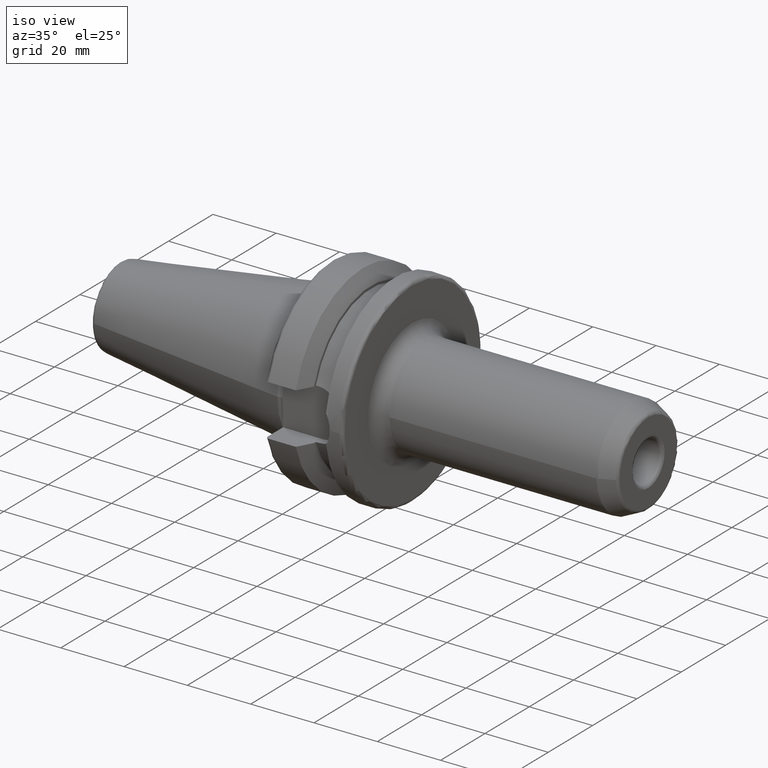
[diagram: clean part render]
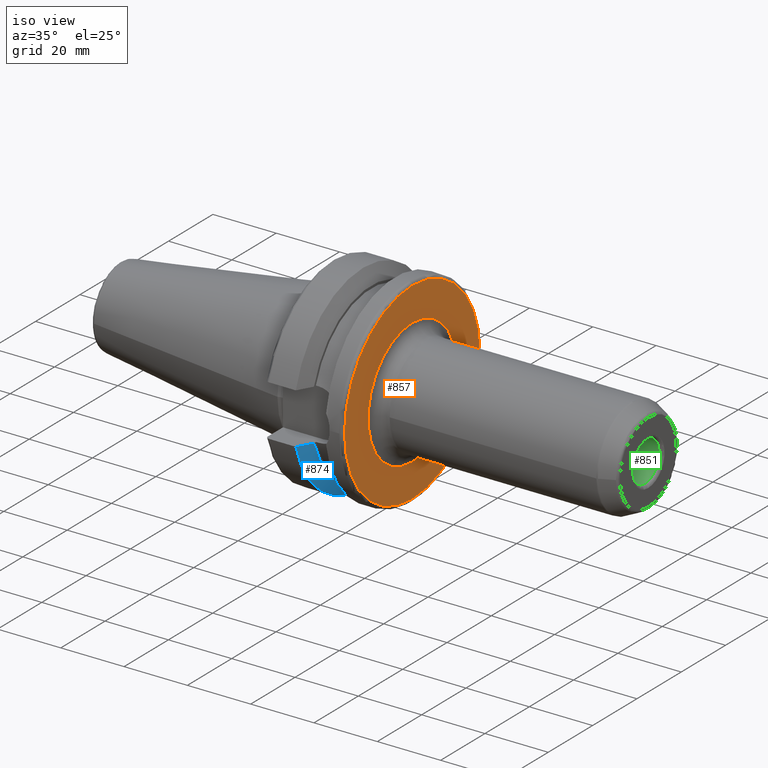
[diagram: same view with three faces highlighted in distinct colors, each labeled with its STEP entity id]
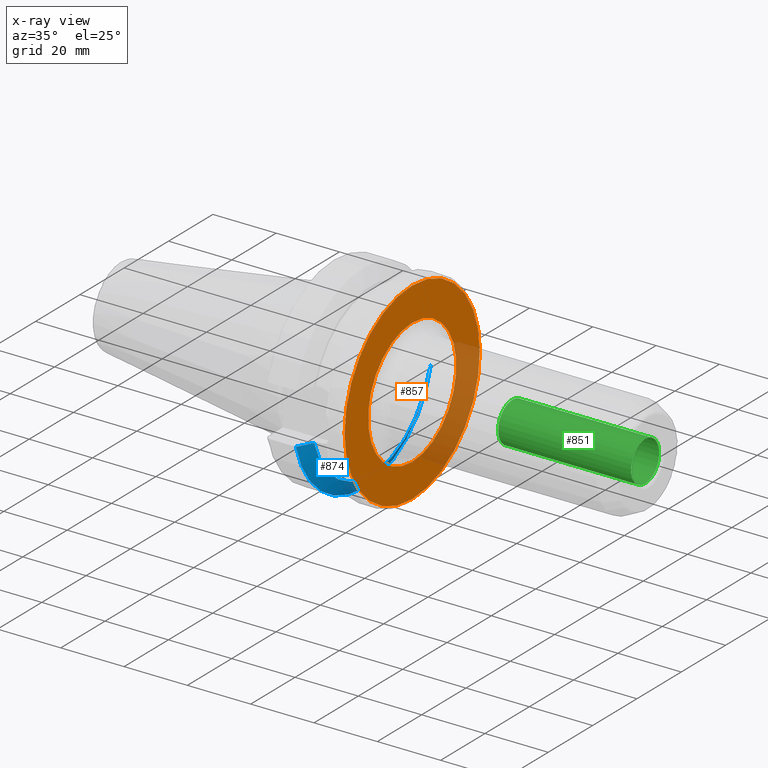
[diagram: x-ray of the same camera — body ghosted, the three highlighted faces saturated]
A machine part, iso view with three faces highlighted in distinct colors.
The next image is the same camera in x-ray (body ghosted, the three faces saturated) — at least one of them is partly hidden behind the body in this view.
Their STEP definitions:

[orange] entity #857 — the highlighted planar face has unit normal (1, 0, 0).
#157=FACE_BOUND('',#244,.T.);
#164=PLANE('',#950);
#188=FACE_OUTER_BOUND('',#243,.T.);
#243=EDGE_LOOP('',(#620));
#244=EDGE_LOOP('',(#621));
#310=CIRCLE('',#949,19.875);
#311=CIRCLE('',#951,30.5);
#374=VERTEX_POINT('',#1445);
#375=VERTEX_POINT('',#1449);
#468=EDGE_CURVE('',#374,#374,#310,.T.);
#469=EDGE_CURVE('',#375,#375,#311,.T.);
#620=ORIENTED_EDGE('',*,*,#469,.T.);
#621=ORIENTED_EDGE('',*,*,#468,.F.);
#857=ADVANCED_FACE('',(#188,#157),#164,.T.);
#949=AXIS2_PLACEMENT_3D('',#1447,#1094,#1095);
#950=AXIS2_PLACEMENT_3D('',#1448,#1096,#1097);
#951=AXIS2_PLACEMENT_3D('',#1450,#1098,#1099);
#1094=DIRECTION('center_axis',(1.,0.,0.));
#1095=DIRECTION('ref_axis',(0.,-1.,-1.22464679914735E-16));
#1096=DIRECTION('center_axis',(1.,0.,0.));
#1097=DIRECTION('ref_axis',(0.,0.,-1.));
#1098=DIRECTION('center_axis',(1.,0.,0.));
#1099=DIRECTION('ref_axis',(0.,0.,-1.));
#1445=CARTESIAN_POINT('',(27.,-2.43398551330536E-15,-19.875));
#1447=CARTESIAN_POINT('Origin',(27.,0.,0.));
#1448=CARTESIAN_POINT('Origin',(27.,0.,0.));
#1449=CARTESIAN_POINT('',(27.,-3.73517273739943E-15,30.5));
#1450=CARTESIAN_POINT('Origin',(27.,0.,0.));

[blue] entity #874 — the highlighted conical surface has half-angle 60.125 deg.
#16=(
BOUNDED_CURVE()
B_SPLINE_CURVE(2,(#1574,#1575,#1576),.UNSPECIFIED.,.F.,.F.)
B_SPLINE_CURVE_WITH_KNOTS((3,3),(0.,0.52358279083281),.UNSPECIFIED.)
CURVE()
GEOMETRIC_REPRESENTATION_ITEM()
RATIONAL_B_SPLINE_CURVE((1.,1.00307360097546,1.))
REPRESENTATION_ITEM('')
);
#17=(
BOUNDED_CURVE()
B_SPLINE_CURVE(2,(#1631,#1632,#1633),.UNSPECIFIED.,.F.,.F.)
B_SPLINE_CURVE_WITH_KNOTS((3,3),(0.,0.52358279083281),.UNSPECIFIED.)
CURVE()
GEOMETRIC_REPRESENTATION_ITEM()
RATIONAL_B_SPLINE_CURVE((1.,1.00307360097546,1.))
REPRESENTATION_ITEM('')
);
#22=CONICAL_SURFACE('',#983,29.2970358274569,1.0493792127616);
#205=FACE_OUTER_BOUND('',#263,.T.);
#263=EDGE_LOOP('',(#707,#708,#709,#710));
#326=CIRCLE('',#982,27.0940716549138);
#327=CIRCLE('',#984,31.5000000000001);
#403=VERTEX_POINT('',#1571);
#404=VERTEX_POINT('',#1573);
#413=VERTEX_POINT('',#1625);
#414=VERTEX_POINT('',#1629);
#504=EDGE_CURVE('',#404,#403,#16,.T.);
#520=EDGE_CURVE('',#404,#413,#326,.T.);
#522=EDGE_CURVE('',#403,#414,#327,.T.);
#523=EDGE_CURVE('',#414,#413,#17,.T.);
#707=ORIENTED_EDGE('',*,*,#504,.T.);
#708=ORIENTED_EDGE('',*,*,#522,.T.);
#709=ORIENTED_EDGE('',*,*,#523,.T.);
#710=ORIENTED_EDGE('',*,*,#520,.F.);
#874=ADVANCED_FACE('',(#205),#22,.T.);
#982=AXIS2_PLACEMENT_3D('',#1626,#1183,#1184);
#983=AXIS2_PLACEMENT_3D('',#1628,#1186,#1187);
#984=AXIS2_PLACEMENT_3D('',#1630,#1188,#1189);
#1183=DIRECTION('center_axis',(1.,0.,0.));
#1184=DIRECTION('ref_axis',(0.,0.,-1.));
#1186=DIRECTION('center_axis',(-1.,0.,0.));
#1187=DIRECTION('ref_axis',(0.,1.,0.));
#1188=DIRECTION('center_axis',(1.,0.,0.));
#1189=DIRECTION('ref_axis',(0.,0.,-1.));
#1571=CARTESIAN_POINT('',(11.5690363073382,-30.4540227227866,-8.05));
#1573=CARTESIAN_POINT('',(14.1,-25.8705666509569,-8.05));
#1574=CARTESIAN_POINT('Ctrl Pts',(14.1,-25.8705666509569,-8.05));
#1575=CARTESIAN_POINT('Ctrl Pts',(12.9374976962938,-27.989970265181,-8.05));
#1576=CARTESIAN_POINT('Ctrl Pts',(11.5690363073382,-30.4540227227866,-8.05));
#1625=CARTESIAN_POINT('',(14.1,25.8705666509569,-8.05));
#1626=CARTESIAN_POINT('Origin',(14.1,0.,0.));
#1628=CARTESIAN_POINT('Origin',(12.8345181536691,0.,0.));
#1629=CARTESIAN_POINT('',(11.5690363073382,30.4540227227866,-8.05));
#1630=CARTESIAN_POINT('Origin',(11.5690363073382,0.,0.));
#1631=CARTESIAN_POINT('Ctrl Pts',(11.5690363073382,30.4540227227866,-8.05));
#1632=CARTESIAN_POINT('Ctrl Pts',(12.9374976962938,27.989970265181,-8.05));
#1633=CARTESIAN_POINT('Ctrl Pts',(14.1,25.8705666509569,-8.05));

[green] entity #851 — the highlighted cylindrical surface (bore or boss wall) has radius 6.35 mm, axis along (1, 0, 0).
#28=B_SPLINE_CURVE_WITH_KNOTS('',3,(#1334,#1335,#1336,#1337,#1338,#1339,
#1340,#1341,#1342,#1343),.UNSPECIFIED.,.F.,.F.,(4,2,2,2,4),(0.,0.193368535030048,
0.386737070060095,0.573629086500711,0.760521102941327),.UNSPECIFIED.);
#29=B_SPLINE_CURVE_WITH_KNOTS('',3,(#1344,#1345,#1346,#1347,#1348,#1349,
#1350,#1351,#1352,#1353,#1354,#1355,#1356,#1357,#1358,#1359,#1360,#1361,
#1362,#1363,#1364,#1365,#1366,#1367,#1368,#1369,#1370,#1371,#1372,#1373),
 .UNSPECIFIED.,.F.,.F.,(4,2,2,2,2,2,2,2,2,2,2,2,2,2,4),(0.760521102941327,
0.961549827452933,1.16257855196454,1.36686694826909,1.46901114642136,1.57115534457363,
1.67329954272591,1.77544374087818,1.97973213718273,2.18076086169434,2.38178958620594,
2.56868160264656,2.75557361908717,2.94894215411722,3.14231068914727),
 .UNSPECIFIED.);
#48=LINE('',#1330,#93);
#93=VECTOR('',#1057,6.35000000000001);
#138=CYLINDRICAL_SURFACE('',#931,6.35000000000001);
#155=FACE_BOUND('',#236,.T.);
#182=FACE_OUTER_BOUND('',#235,.T.);
#235=EDGE_LOOP('',(#582,#583,#584,#585,#586));
#236=EDGE_LOOP('',(#587,#588));
#293=CIRCLE('',#925,6.35000000000001);
#294=CIRCLE('',#926,6.35000000000001);
#298=CIRCLE('',#932,6.35000000000001);
#356=VERTEX_POINT('',#1318);
#357=VERTEX_POINT('',#1319);
#360=VERTEX_POINT('',#1329);
#361=VERTEX_POINT('',#1332);
#362=VERTEX_POINT('',#1333);
#443=EDGE_CURVE('',#356,#357,#293,.T.);
#444=EDGE_CURVE('',#357,#356,#294,.T.);
#448=EDGE_CURVE('',#357,#360,#48,.T.);
#449=EDGE_CURVE('',#360,#360,#298,.T.);
#450=EDGE_CURVE('',#361,#362,#28,.T.);
#451=EDGE_CURVE('',#362,#361,#29,.T.);
#582=ORIENTED_EDGE('',*,*,#443,.F.);
#583=ORIENTED_EDGE('',*,*,#444,.F.);
#584=ORIENTED_EDGE('',*,*,#448,.T.);
#585=ORIENTED_EDGE('',*,*,#449,.F.);
#586=ORIENTED_EDGE('',*,*,#448,.F.);
#587=ORIENTED_EDGE('',*,*,#450,.T.);
#588=ORIENTED_EDGE('',*,*,#451,.T.);
#851=ADVANCED_FACE('',(#182,#155),#138,.F.);
#925=AXIS2_PLACEMENT_3D('',#1320,#1043,#1044);
#926=AXIS2_PLACEMENT_3D('',#1321,#1045,#1046);
#931=AXIS2_PLACEMENT_3D('',#1328,#1055,#1056);
#932=AXIS2_PLACEMENT_3D('',#1331,#1058,#1059);
#1043=DIRECTION('center_axis',(-1.,0.,0.));
#1044=DIRECTION('ref_axis',(0.,-1.,1.83697019872103E-16));
#1045=DIRECTION('center_axis',(-1.,0.,0.));
#1046=DIRECTION('ref_axis',(0.,-1.,1.83697019872103E-16));
#1055=DIRECTION('center_axis',(1.,0.,0.));
#1056=DIRECTION('ref_axis',(0.,1.,0.));
#1057=DIRECTION('',(-1.,0.,0.));
#1058=DIRECTION('center_axis',(1.,0.,0.));
#1059=DIRECTION('ref_axis',(0.,0.,-1.));
#1318=CARTESIAN_POINT('',(100.6,-7.77650717458571E-16,6.35000000000001));
#1319=CARTESIAN_POINT('',(100.6,-6.35000000000001,-7.77650717458571E-16));
#1320=CARTESIAN_POINT('Origin',(100.6,0.,0.));
#1321=CARTESIAN_POINT('Origin',(100.6,0.,0.));
#1328=CARTESIAN_POINT('Origin',(80.1,0.,0.));
#1329=CARTESIAN_POINT('',(58.6,-6.35000000000001,-7.77650717458571E-16));
#1330=CARTESIAN_POINT('',(80.1,-6.35000000000001,-7.77650717458571E-16));
#1331=CARTESIAN_POINT('Origin',(58.6,0.,0.));
#1332=CARTESIAN_POINT('',(81.6,4.70531095571803,4.2641));
#1333=CARTESIAN_POINT('',(86.4641,6.32158998986807,-0.600000000000002));
#1334=CARTESIAN_POINT('Ctrl Pts',(81.6,4.70531095571803,4.2641));
#1335=CARTESIAN_POINT('Ctrl Pts',(82.2445617834335,4.70531095571803,4.2641));
#1336=CARTESIAN_POINT('Ctrl Pts',(82.9054649545836,4.83378218251738,4.13033922850782));
#1337=CARTESIAN_POINT('Ctrl Pts',(84.0996103432792,5.22496197478153,3.62283212122791));
#1338=CARTESIAN_POINT('Ctrl Pts',(84.635986521019,5.47742345198992,3.24861822753996));
#1339=CARTESIAN_POINT('Ctrl Pts',(85.4755533008003,5.89851445326989,2.39746876822456));
#1340=CARTESIAN_POINT('Ctrl Pts',(85.8430213776697,6.1005197680296,1.86380780487368));
#1341=CARTESIAN_POINT('Ctrl Pts',(86.3377491780999,6.34299631070766,0.675662139466679));
#1342=CARTESIAN_POINT('Ctrl Pts',(86.4641,6.38045361709346,0.0201861943922594));
#1343=CARTESIAN_POINT('Ctrl Pts',(86.4641,6.32158998986807,-0.6));
#1344=CARTESIAN_POINT('Ctrl Pts',(86.4641,6.32158998986807,-0.600000000000003));
#1345=CARTESIAN_POINT('Ctrl Pts',(86.4641,6.25827385616362,-1.26709772837192));
#1346=CARTESIAN_POINT('Ctrl Pts',(86.3198748812455,6.07995137087293,-1.94567055591286));
#1347=CARTESIAN_POINT('Ctrl Pts',(85.7961384798568,5.55483209794977,-3.14567638115753));
#1348=CARTESIAN_POINT('Ctrl Pts',(85.4180995722646,5.20986764101969,-3.66855222751394));
#1349=CARTESIAN_POINT('Ctrl Pts',(84.5854930444105,4.52732600260418,-4.4847988117916));
#1350=CARTESIAN_POINT('Ctrl Pts',(84.0683597337991,4.13330313372253,-4.83764123739562));
#1351=CARTESIAN_POINT('Ctrl Pts',(83.2043788560352,3.64656353264433,-5.20251773009523));
#1352=CARTESIAN_POINT('Ctrl Pts',(82.9015099931344,3.50289132544079,-5.29784093855058));
#1353=CARTESIAN_POINT('Ctrl Pts',(82.2697004780691,3.29670036023378,-5.42855421478099));
#1354=CARTESIAN_POINT('Ctrl Pts',(81.9404806605076,3.23513696618862,-5.4641));
#1355=CARTESIAN_POINT('Ctrl Pts',(81.2595193394924,3.23513696618862,-5.4641));
#1356=CARTESIAN_POINT('Ctrl Pts',(80.9302995219309,3.29670036023378,-5.42855421478099));
#1357=CARTESIAN_POINT('Ctrl Pts',(80.2984900068655,3.5028913254408,-5.29784093855058));
#1358=CARTESIAN_POINT('Ctrl Pts',(79.9956211439648,3.64656353264434,-5.20251773009523));
#1359=CARTESIAN_POINT('Ctrl Pts',(79.1316402662009,4.13330313372254,-4.83764123739561));
#1360=CARTESIAN_POINT('Ctrl Pts',(78.6145069555895,4.52732600260418,-4.4847988117916));
#1361=CARTESIAN_POINT('Ctrl Pts',(77.7819004277354,5.20986764101969,-3.66855222751394));
#1362=CARTESIAN_POINT('Ctrl Pts',(77.4038615201432,5.55483209794977,-3.14567638115753));
#1363=CARTESIAN_POINT('Ctrl Pts',(76.8801251187545,6.07995137087293,-1.94567055591286));
#1364=CARTESIAN_POINT('Ctrl Pts',(76.7359,6.25827385616362,-1.26709772837192));
#1365=CARTESIAN_POINT('Ctrl Pts',(76.7359,6.38045361709346,0.0201861943922597));
#1366=CARTESIAN_POINT('Ctrl Pts',(76.8622508219001,6.34299631070766,0.675662139466683));
#1367=CARTESIAN_POINT('Ctrl Pts',(77.3569786223304,6.1005197680296,1.86380780487368));
#1368=CARTESIAN_POINT('Ctrl Pts',(77.7244466991997,5.89851445326989,2.39746876822456));
#1369=CARTESIAN_POINT('Ctrl Pts',(78.564013478981,5.47742345198992,3.24861822753996));
#1370=CARTESIAN_POINT('Ctrl Pts',(79.1003896567208,5.22496197478153,3.62283212122791));
#1371=CARTESIAN_POINT('Ctrl Pts',(80.2945350454164,4.83378218251738,4.13033922850782));
#1372=CARTESIAN_POINT('Ctrl Pts',(80.9554382165665,4.70531095571803,4.2641));
#1373=CARTESIAN_POINT('Ctrl Pts',(81.6,4.70531095571803,4.2641));